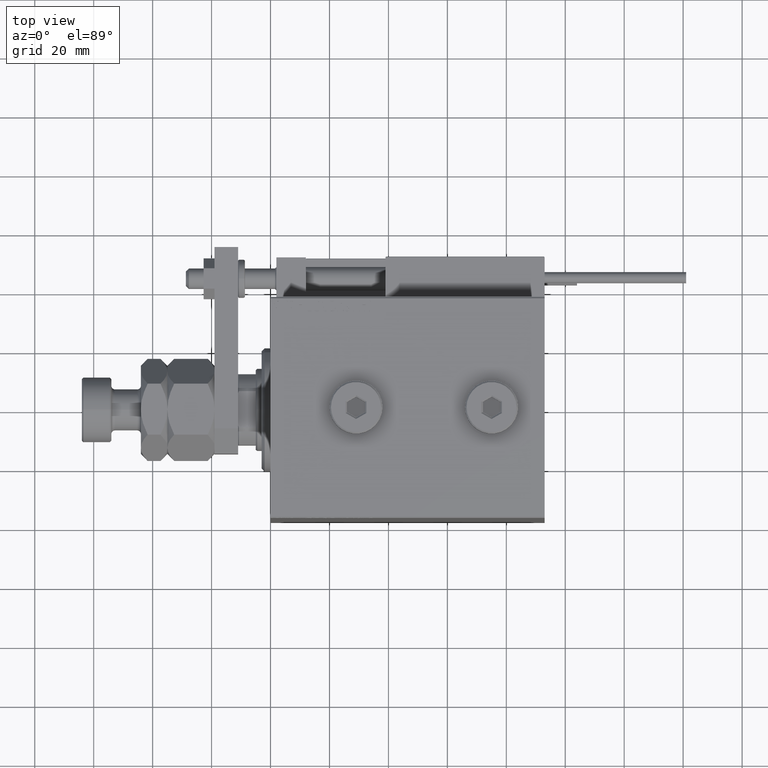
[diagram: clean part render]
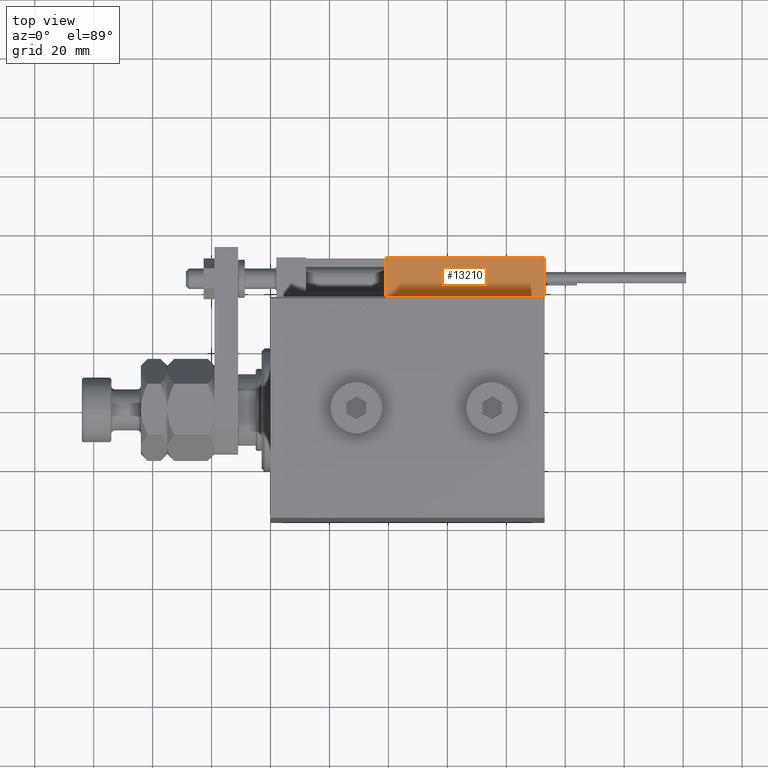
[diagram: same view with one face highlighted and labeled with its STEP entity id]
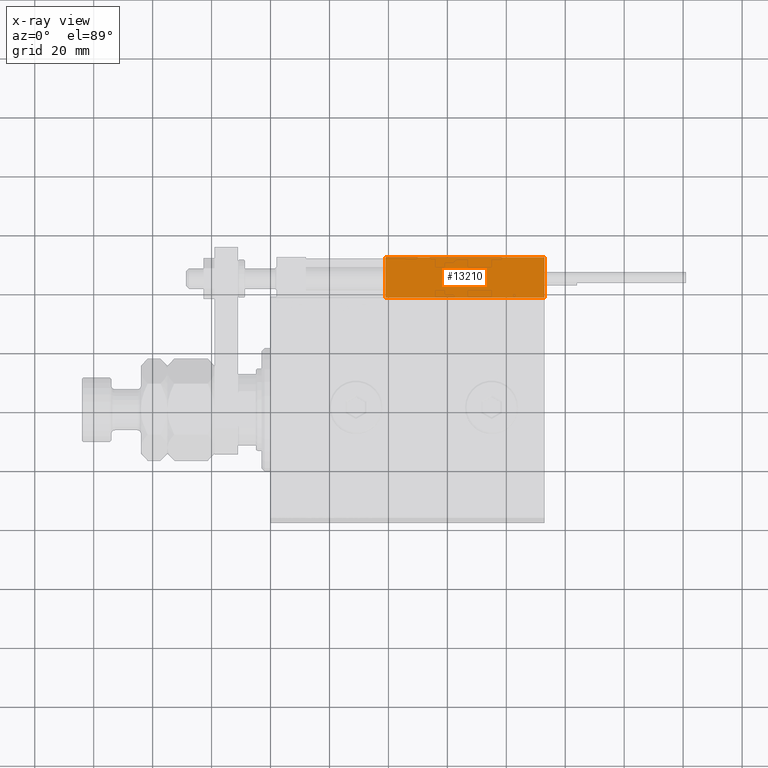
[diagram: x-ray of the same camera — body ghosted, the highlighted face saturated]
A machine part, top view. The second image highlights one B-rep face of the part: STEP entity #13210.
The next image is the same camera in x-ray: the body ghosted, the highlighted face saturated — about 0% of this face is hidden behind the body in this view.
In plain terms, the highlighted planar face has unit normal (-0, -0, -1).
Its self-contained STEP definition (entity closure, byte-faithful):
#718 = VERTEX_POINT ( 'NONE', #48543 ) ;
#767 = ORIENTED_EDGE ( 'NONE', *, *, #10032, .T. ) ;
#2340 = EDGE_CURVE ( 'NONE', #18730, #6385, #51345, .T. ) ;
#3443 = AXIS2_PLACEMENT_3D ( 'NONE', #49514, #20715, #12689 ) ;
#6368 = CARTESIAN_POINT ( 'NONE',  ( 27.00000000000006395, 20.00000000000001776, 13.70000000000000107 ) ) ;
#6385 = VERTEX_POINT ( 'NONE', #35484 ) ;
#7749 = LINE ( 'NONE', #23560, #33397 ) ;
#10032 = EDGE_CURVE ( 'NONE', #16145, #18730, #11808, .T. ) ;
#11808 = LINE ( 'NONE', #28420, #15884 ) ;
#12344 = VECTOR ( 'NONE', #21593, 1000.000000000000000 ) ;
#12363 = EDGE_CURVE ( 'NONE', #718, #16145, #7749, .T. ) ;
#12689 = DIRECTION ( 'NONE',  ( 1.000000000000000000, -6.424901762877063495E-17, 0.000000000000000000 ) ) ;
#13210 = ADVANCED_FACE ( 'NONE', ( #45486 ), #16437, .F. ) ;
#15444 = ORIENTED_EDGE ( 'NONE', *, *, #12363, .T. ) ;
#15884 = VECTOR ( 'NONE', #28960, 1000.000000000000000 ) ;
#16145 = VERTEX_POINT ( 'NONE', #6368 ) ;
#16437 = PLANE ( 'NONE',  #3443 ) ;
#18730 = VERTEX_POINT ( 'NONE', #36271 ) ;
#20715 = DIRECTION ( 'NONE',  ( -6.424901762877063495E-17, -1.000000000000000000, 0.000000000000000000 ) ) ;
#21593 = DIRECTION ( 'NONE',  ( -0.000000000000000000, -0.000000000000000000, -1.000000000000000000 ) ) ;
#22032 = DIRECTION ( 'NONE',  ( -1.000000000000000000, 6.424901762877062263E-17, 0.000000000000000000 ) ) ;
#22876 = ORIENTED_EDGE ( 'NONE', *, *, #2340, .T. ) ;
#23560 = CARTESIAN_POINT ( 'NONE',  ( 27.00000000000006395, 20.00000000000001776, 13.70000000000000107 ) ) ;
#24357 = DIRECTION ( 'NONE',  ( 1.000000000000000000, -6.424901762877063495E-17, -0.000000000000000000 ) ) ;
#25588 = EDGE_CURVE ( 'NONE', #718, #6385, #25622, .T. ) ;
#25622 = LINE ( 'NONE', #42045, #12344 ) ;
#28420 = CARTESIAN_POINT ( 'NONE',  ( 27.00000000000006395, 20.00000000000001776, 14.00000000000000000 ) ) ;
#28960 = DIRECTION ( 'NONE',  ( -0.000000000000000000, -0.000000000000000000, -1.000000000000000000 ) ) ;
#33397 = VECTOR ( 'NONE', #24357, 1000.000000000000000 ) ;
#35484 = CARTESIAN_POINT ( 'NONE',  ( -26.99999999999993605, 20.00000000000002132, 0.000000000000000000 ) ) ;
#36271 = CARTESIAN_POINT ( 'NONE',  ( 27.00000000000006395, 20.00000000000001776, 0.000000000000000000 ) ) ;
#41821 = ORIENTED_EDGE ( 'NONE', *, *, #25588, .F. ) ;
#42045 = CARTESIAN_POINT ( 'NONE',  ( -26.99999999999993605, 20.00000000000002132, 14.00000000000000000 ) ) ;
#42321 = VECTOR ( 'NONE', #22032, 1000.000000000000000 ) ;
#42995 = CARTESIAN_POINT ( 'NONE',  ( 27.00000000000006395, 20.00000000000001776, 0.000000000000000000 ) ) ;
#45486 = FACE_OUTER_BOUND ( 'NONE', #47351, .T. ) ;
#47351 = EDGE_LOOP ( 'NONE', ( #41821, #15444, #767, #22876 ) ) ;
#48543 = CARTESIAN_POINT ( 'NONE',  ( -26.99999999999993605, 20.00000000000002132, 13.70000000000000107 ) ) ;
#49514 = CARTESIAN_POINT ( 'NONE',  ( 27.00000000000006395, 20.00000000000001776, 14.00000000000000000 ) ) ;
#51345 = LINE ( 'NONE', #42995, #42321 ) ;